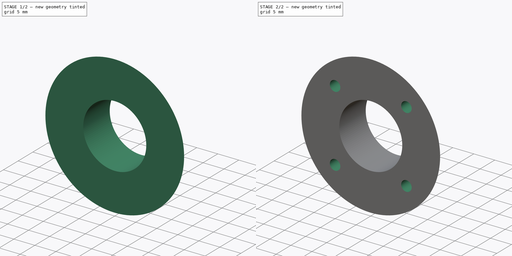
[diagram: build sequence overview — one tinted view per stage of 2, left to right]
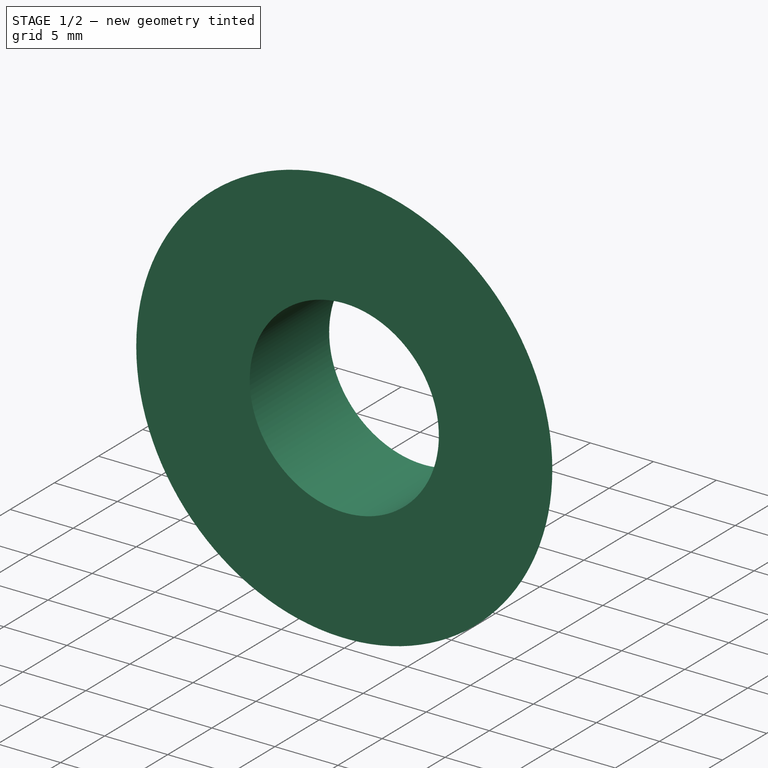
[diagram: stage 1 of 2 — iso view after this stage's code; geometry added in this stage tinted green]
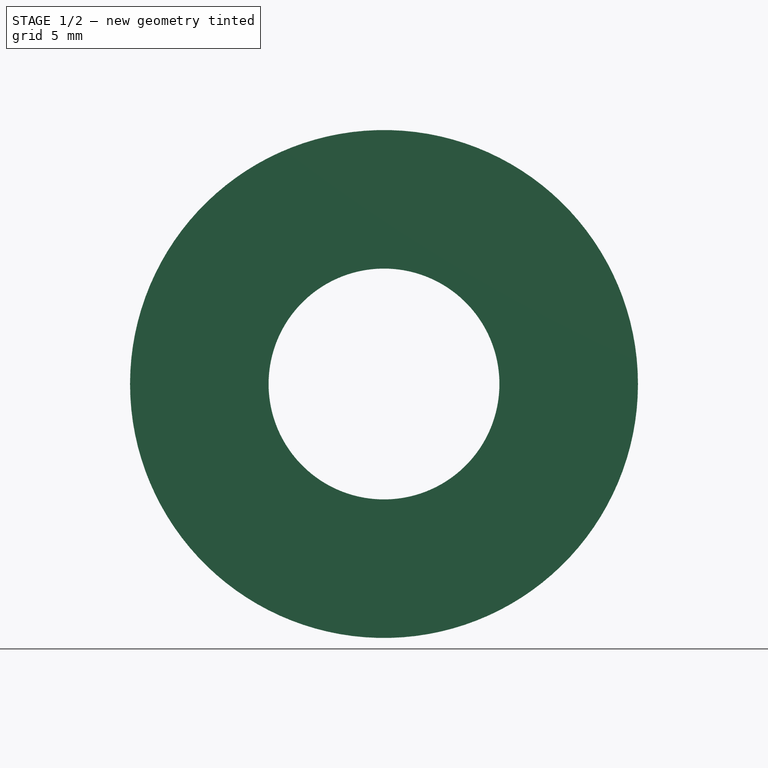
[diagram: stage 1 of 2 — front view after this stage's code; geometry added in this stage tinted green]
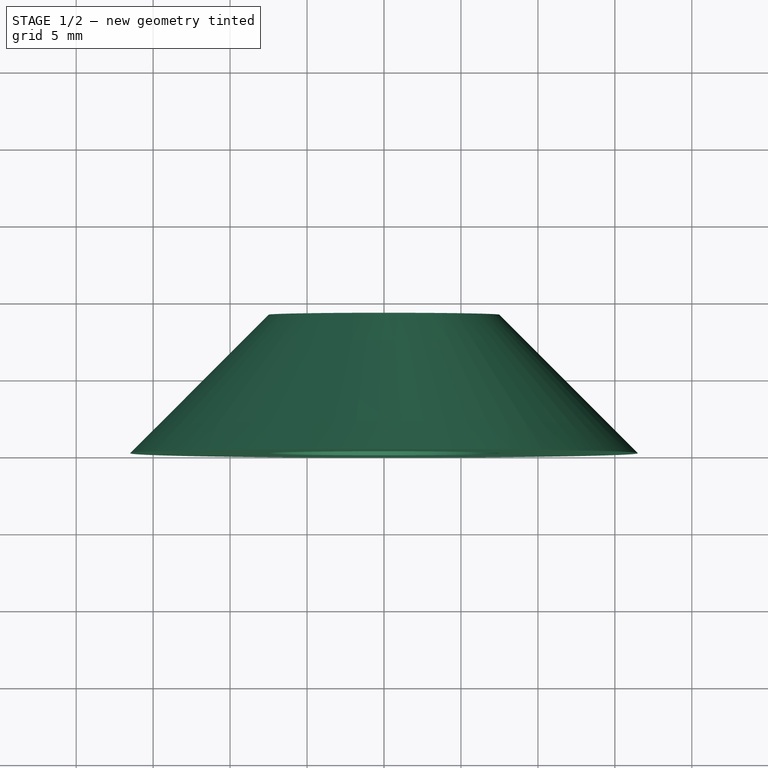
[diagram: stage 1 of 2 — top view after this stage's code; geometry added in this stage tinted green]
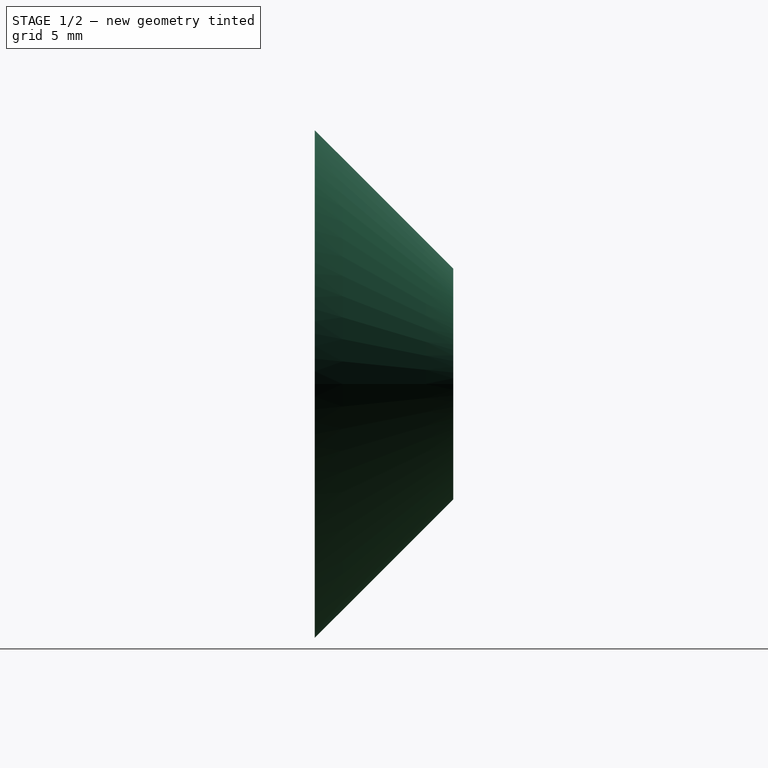
[diagram: stage 1 of 2 — right view after this stage's code; geometry added in this stage tinted green]
FCSTD DOCUMENT  (FreeCAD 0.19R24276 (Git))
Label: Tension_roller_v1
License: All rights reserved
LicenseURL: http://en.wikipedia.org/wiki/All_rights_reserved
objects: Sketcher::SketchObject×2, PartDesign::Revolution×1, PartDesign::Pocket×1, PartDesign::Body×1
note: 7 computed .brp shape members not serialized (recipe doc carries the construction recipe); baked Part::Feature solids carry a one-line shape summary decoded from their .brp

FEATURE [Sketcher::SketchObject] Sketch
  FullyConstrained = true
  MapMode = 5
  Support = -> [XY_Plane]
  sketch-geometry (8):
    g0: LineSegment StartX=0 StartY=9 StartZ=0 EndX=7.5 EndY=9 EndZ=0
    g1: LineSegment StartX=7.5 StartY=9 StartZ=0 EndX=16.5 EndY=0 EndZ=0
    g2: LineSegment StartX=16.5 StartY=0 StartZ=0 EndX=0 EndY=0 EndZ=0
    g3: LineSegment StartX=0 StartY=9 StartZ=0 EndX=0 EndY=0 EndZ=0
    g4: LineSegment StartX=7.5 StartY=9 StartZ=0 EndX=7.5 EndY=0 EndZ=0
    g5: LineSegment StartX=7.5 StartY=0 StartZ=0 EndX=16.5 EndY=0 EndZ=0
    g6: LineSegment StartX=7.5 StartY=0 StartZ=0 EndX=7.5 EndY=9 EndZ=0
    g7: LineSegment StartX=16.5 StartY=0 StartZ=0 EndX=7.5 EndY=9 EndZ=0
  constraints (20):
    c: PointOnObject(g0,g-2)
    c: Horizontal(g0)
    c: DistanceX(g0,g0) = 7.5
    c: Coincident(g1,g0)
    c: PointOnObject(g1,g-1)
    c: Coincident(g2,g1)
    c: Coincident(g2,g-1)
    c: Coincident(g3,g0)
    c: Coincident(g3,g-1)
    c: DistanceY(g3,g3) = 9
    c: Angle(g1,g2) = 0.785398
    c: Coincident(g4,g0)
    c: Vertical(g4)
    c: PointOnObject(g4,g2)
    c: Coincident(g5,g4)
    c: Coincident(g5,g1)
    c: Coincident(g6,g5)
    c: Coincident(g7,g5)
    c: Coincident(g7,g0)
    c: Coincident(g6,g7)
FEATURE [PartDesign::Revolution] Revolution
  Angle = 360
  Axis = (0,1,0)
  Base = (0,0,0)
  Profile = -> Sketch
  ReferenceAxis = -> Sketch [V_Axis]
  Reversed = true
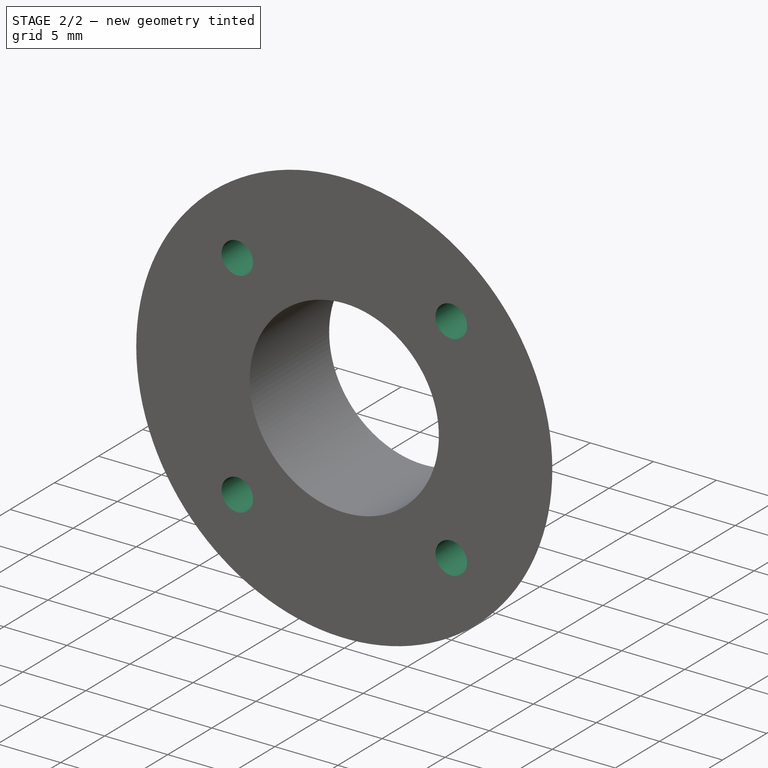
[diagram: stage 2 of 2 — iso view after this stage's code; geometry added in this stage tinted green]
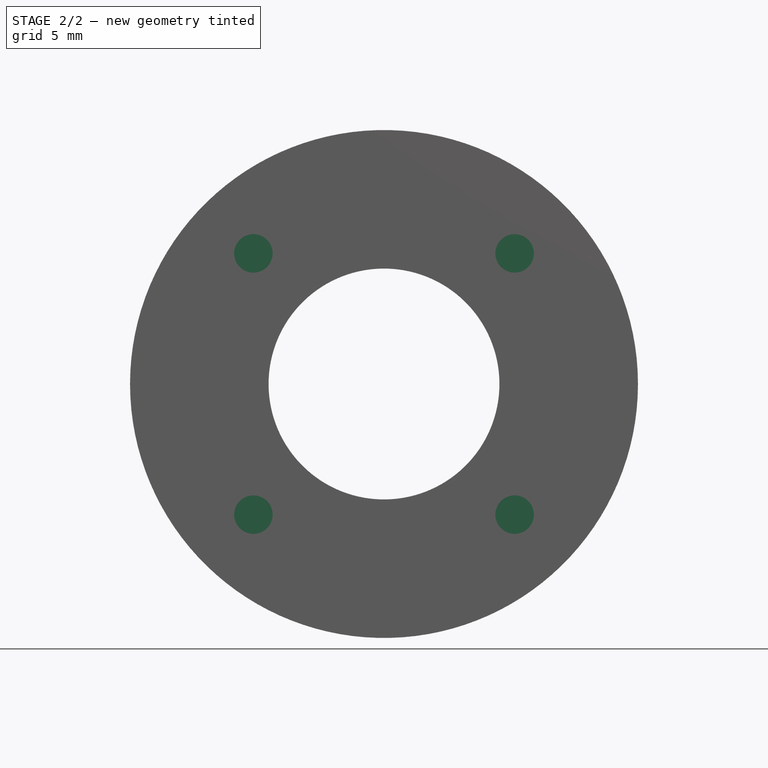
[diagram: stage 2 of 2 — front view after this stage's code; geometry added in this stage tinted green]
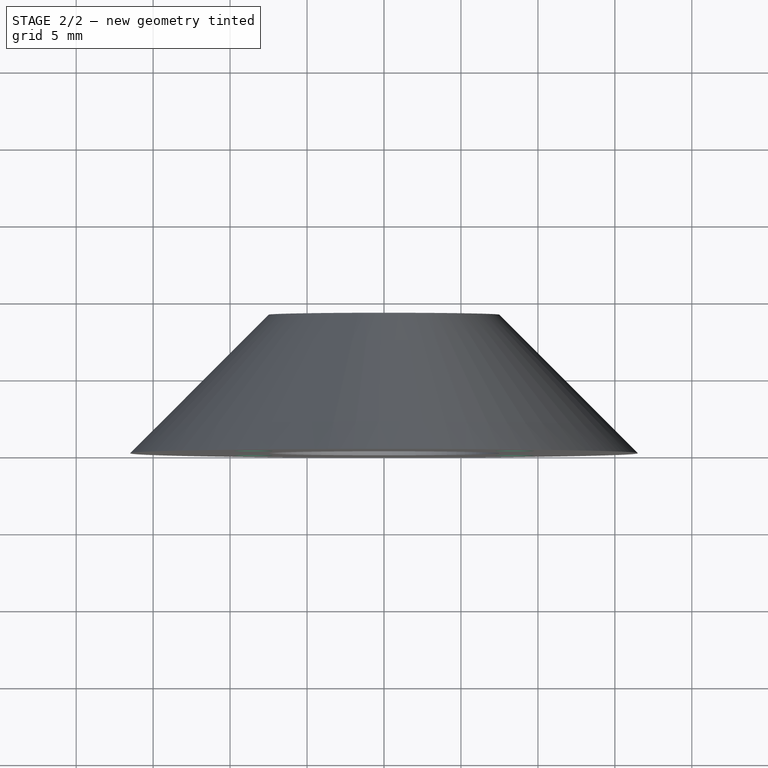
[diagram: stage 2 of 2 — top view after this stage's code; geometry added in this stage tinted green]
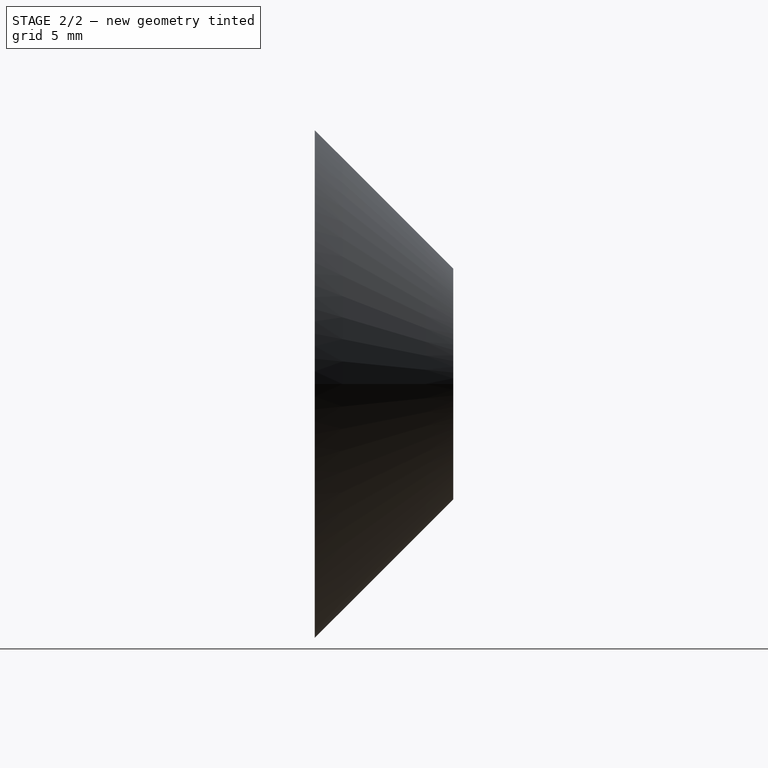
[diagram: stage 2 of 2 — right view after this stage's code; geometry added in this stage tinted green]
FEATURE [Sketcher::SketchObject] Sketch001
  FullyConstrained = true
  MapMode = 5
  Placement = pos=(0,0,0) rot=(1,0,0;1.5708rad)
  Support = -> [Revolution]
  sketch-geometry (9):
    g0: LineSegment StartX=8.48528 StartY=8.48528 StartZ=0 EndX=-8.48528 EndY=8.48528 EndZ=0
    g1: LineSegment StartX=-8.48528 StartY=8.48528 StartZ=0 EndX=-8.48528 EndY=-8.48528 EndZ=0
    g2: LineSegment StartX=-8.48528 StartY=-8.48528 StartZ=0 EndX=8.48528 EndY=-8.48528 EndZ=0
    g3: LineSegment StartX=8.48528 StartY=-8.48528 StartZ=0 EndX=8.48528 EndY=8.48528 EndZ=0
    g4: Circle CenterX=0 CenterY=0 CenterZ=0 NormalX=0 NormalY=0 NormalZ=1 AngleXU=0 Radius=12
    g5: Circle CenterX=-8.48528 CenterY=8.48528 CenterZ=0 NormalX=0 NormalY=0 NormalZ=1 AngleXU=0 Radius=1.25
    g6: Circle CenterX=8.48528 CenterY=8.48528 CenterZ=0 NormalX=0 NormalY=0 NormalZ=1 AngleXU=0 Radius=1.25
    g7: Circle CenterX=8.48528 CenterY=-8.48528 CenterZ=0 NormalX=0 NormalY=0 NormalZ=1 AngleXU=0 Radius=1.25
    g8: Circle CenterX=-8.48528 CenterY=-8.48528 CenterZ=0 NormalX=0 NormalY=0 NormalZ=1 AngleXU=0 Radius=1.25
  constraints (22):
    c: Coincident(g0,g1)
    c: Coincident(g1,g2)
    c: Coincident(g2,g3)
    c: Coincident(g3,g0)
    c: Equal(g0,g1)
    c: Equal(g0,g2)
    c: Equal(g0,g3)
    c: PointOnObject(g0,g4)
    c: PointOnObject(g1,g4)
    c: PointOnObject(g2,g4)
    c: PointOnObject(g3,g4)
    c: Coincident(g4,g-1)
    c: Diameter(g4) = 24
    c: Horizontal(g0)
    c: Coincident(g5,g0)
    c: Coincident(g6,g0)
    c: Coincident(g7,g2)
    c: Coincident(g8,g1)
    c: Diameter(g8) = 2.5
    c: Equal(g8,g7)
    c: Equal(g8,g6)
    c: Equal(g8,g5)
FEATURE [PartDesign::Pocket] Pocket
  BaseFeature = -> Revolution
  Length = 3
  Length2 = 100
  Profile = -> Sketch001
  Type = 0
FEATURE [PartDesign::Body] Body
  Group = -> [Sketch,Revolution,Sketch001,Pocket]
  Origin = -> Origin
  Tip = -> Pocket
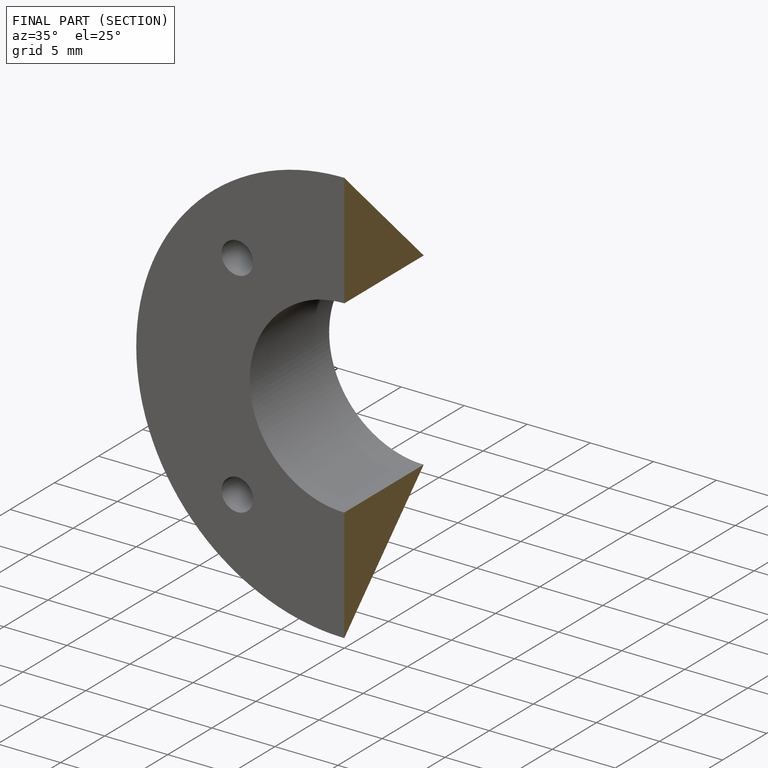
[diagram: finished part — half-section view (interior)]
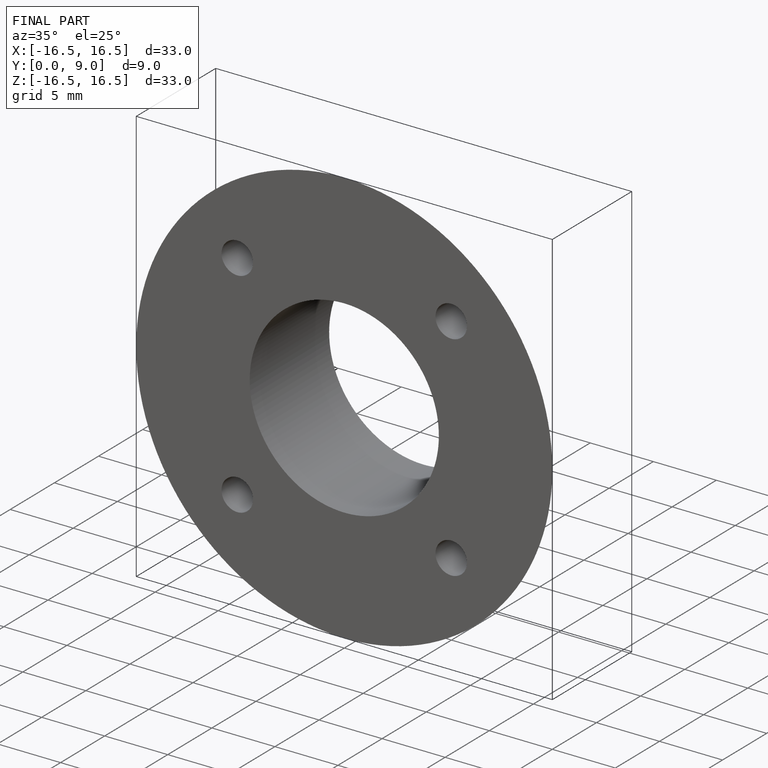
[diagram: finished part — iso view with bounding-box wireframe]
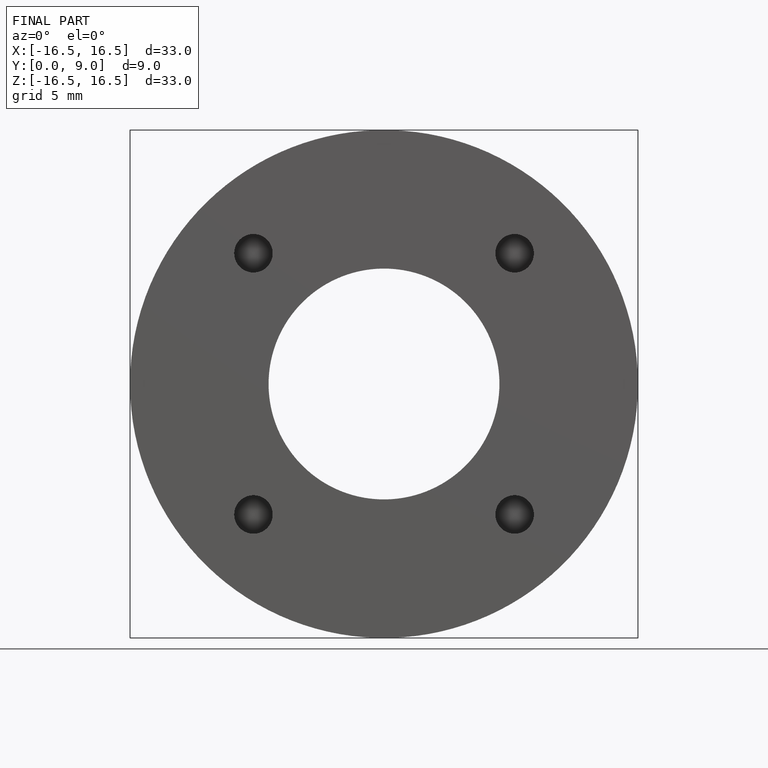
[diagram: finished part — front view with bounding-box wireframe]
